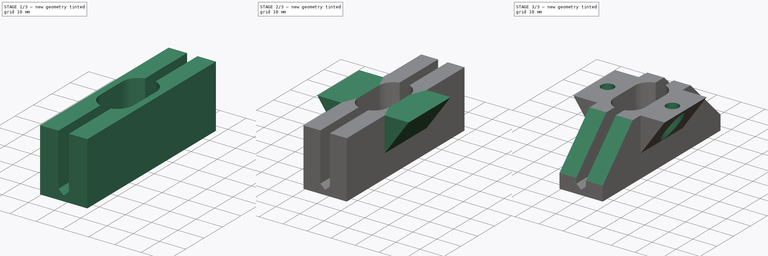
[diagram: build sequence overview — one tinted view per stage of 3, left to right]
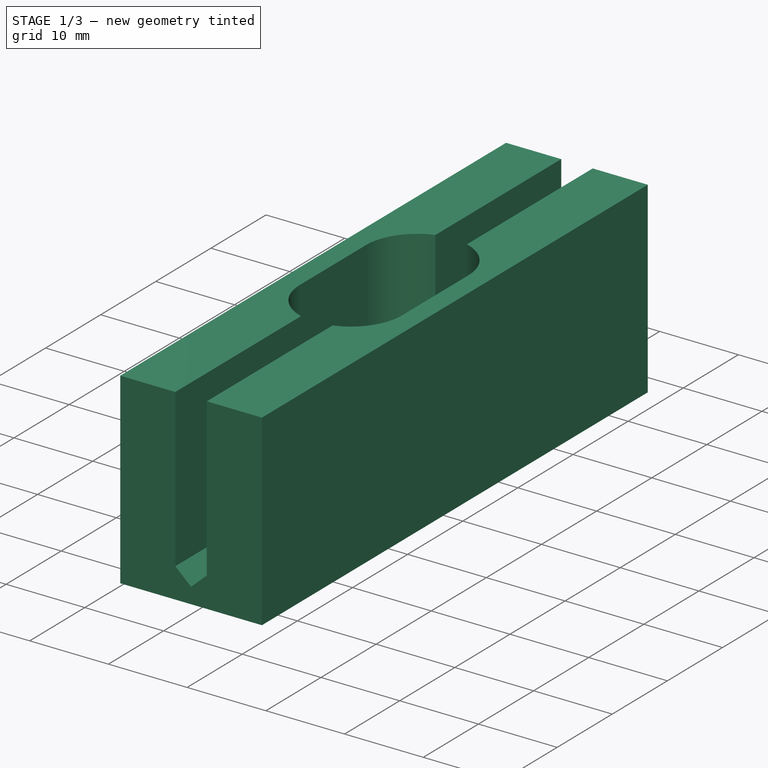
[diagram: stage 1 of 3 — iso view after this stage's code; geometry added in this stage tinted green]
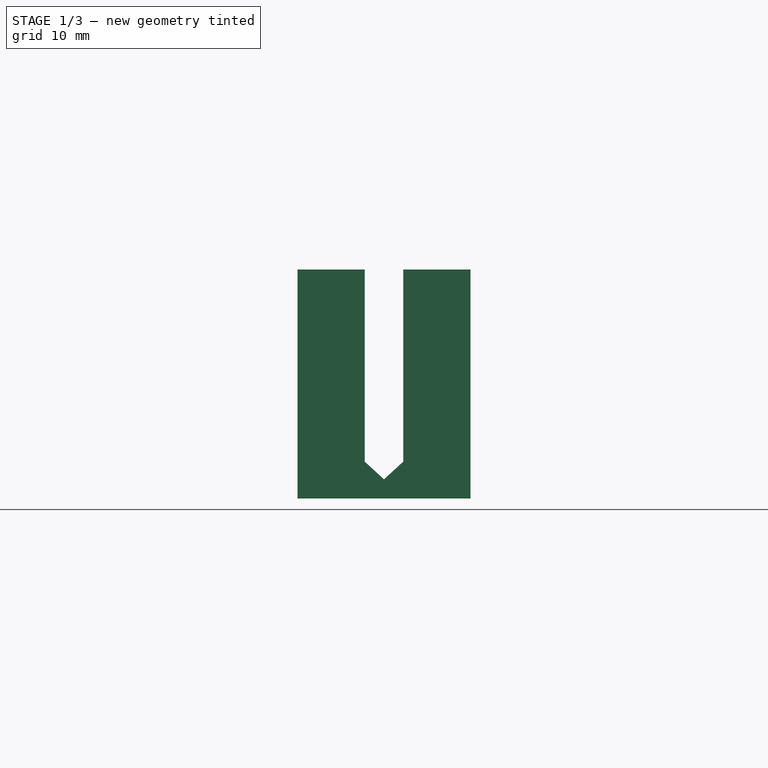
[diagram: stage 1 of 3 — front view after this stage's code; geometry added in this stage tinted green]
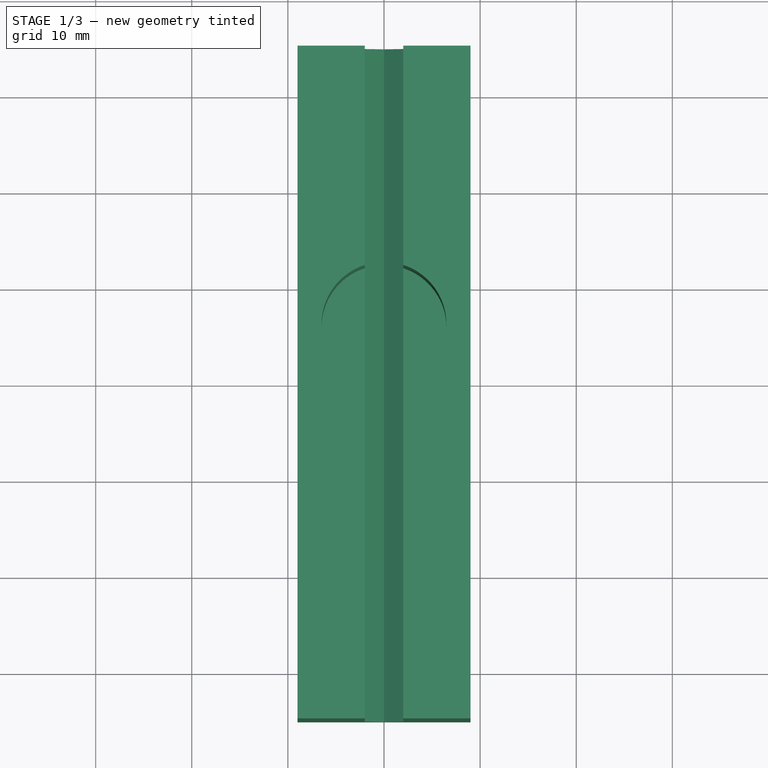
[diagram: stage 1 of 3 — top view after this stage's code; geometry added in this stage tinted green]
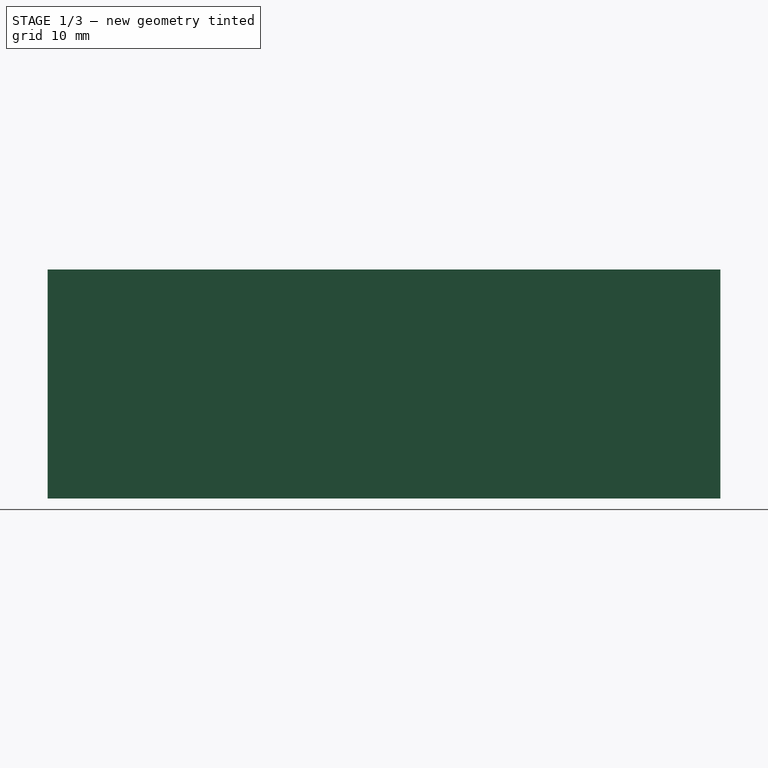
[diagram: stage 1 of 3 — right view after this stage's code; geometry added in this stage tinted green]
FCSTD DOCUMENT  (FreeCAD 1.0R39109 (Git))
Label: Alweco_GreenHouse_Shade_Base
License: All rights reserved
objects: Sketcher::SketchObject×5, PartDesign::Pad×2, PartDesign::Pocket×2, PartDesign::Hole×1, PartDesign::Body×1
note: 26 computed .brp shape members not serialized (recipe doc carries the construction recipe); baked Part::Feature solids carry a one-line shape summary decoded from their .brp

FEATURE [Sketcher::SketchObject] Sketch
  ArcFitTolerance = 1e-06
  AttachmentSupport = -> [XZ_Plane]
  FullyConstrained = true
  MakeInternals = false
  MapMode = 5
  Placement = pos=(0,0,0) rot=(1,0,0;1.5708rad)
  sketch-geometry (9):
    g0: LineSegment StartX=-9 StartY=0 StartZ=0 EndX=9 EndY=0 EndZ=0
    g1: LineSegment StartX=0 StartY=2 StartZ=0 EndX=-2 EndY=3.83266 EndZ=0
    g2: LineSegment StartX=0 StartY=2 StartZ=0 EndX=2 EndY=3.83266 EndZ=0
    g3: LineSegment StartX=2 StartY=3.83266 StartZ=0 EndX=2 EndY=23.8327 EndZ=0
    g4: LineSegment StartX=-2 StartY=3.83266 StartZ=0 EndX=-2 EndY=23.8327 EndZ=0
    g5: LineSegment StartX=-2 StartY=23.8327 StartZ=0 EndX=-9 EndY=23.8327 EndZ=0
    g6: LineSegment StartX=2 StartY=23.8327 StartZ=0 EndX=9 EndY=23.8327 EndZ=0
    g7: LineSegment StartX=9 StartY=23.8327 StartZ=0 EndX=9 EndY=0 EndZ=0
    g8: LineSegment StartX=-9 StartY=23.8327 StartZ=0 EndX=-9 EndY=0 EndZ=0
  constraints (26):
    c: PointOnObject(g0,g-1)
    c: PointOnObject(g0,g-1)
    c: PointOnObject(g1,g-2)
    c: Coincident(g2,g1)
    c: Symmetric(g1,g2,g-2)
    c: DistanceX(g1,g2) = 4
    c: Angle(g2,g1) = 1.65806
    c: Coincident(g3,g2)
    c: Vertical(g3)
    c: Coincident(g4,g1)
    c: Symmetric(g4,g3,g-2)
    c: DistanceY(g3,g3) = 20  'InnerHeight'
    c: DistanceY(g-1,g1) = 2
    c: Coincident(g5,g4)
    c: Horizontal(g5)
    c: Coincident(g6,g3)
    c: Coincident(g7,g6)
    c: Coincident(g7,g0)
    c: Coincident(g8,g5)
    c: Coincident(g8,g0)
    c: Vertical(g8)
    c: Vertical(g7)
    c: Symmetric(g6,g5,g-2)
    c: DistanceX(g6,g6) = 7
    c: DistanceY(g8,g8) = 23.8327  'Height'
    c: DistanceX(g0,g0) = 18  'Width'
FEATURE [PartDesign::Pad] Pad
  Direction = (0,-1,2e-16)
  Length = 70
  Length2 = 10
  Midplane = true
  Placement = pos=(0,0,0) rot=(1,0,0;1.5708rad)
  Profile = -> Sketch
  ReferenceAxis = -> Sketch [N_Axis]
  Refine = true
  Suppressed = false
  Type = 0
FEATURE [Sketcher::SketchObject] Sketch001
  ArcFitTolerance = 1e-06
  AttachmentSupport = -> [Pad]
  FullyConstrained = true
  MakeInternals = false
  MapMode = 5
  Placement = pos=(0,5.3e-15,23.8327) rot=(0,0,1;3.14159rad)
  expr: .Constraints.Height = 25 mm - .Constraints.Width
  sketch-geometry (4):
    g0: ArcOfCircle CenterX=0 CenterY=6 CenterZ=0 NormalX=0 NormalY=0 NormalZ=1 AngleXU=0 Radius=6.5 StartAngle=0 EndAngle=3.14159
    g1: ArcOfCircle CenterX=0 CenterY=-6 CenterZ=0 NormalX=0 NormalY=0 NormalZ=1 AngleXU=0 Radius=6.5 StartAngle=3.14159 EndAngle=6.28319
    g2: LineSegment StartX=6.5 StartY=6 StartZ=0 EndX=6.5 EndY=-6 EndZ=0
    g3: LineSegment StartX=-6.5 StartY=6 StartZ=0 EndX=-6.5 EndY=-6 EndZ=0
  constraints (9):
    c: Tangent(g0,g2) = 1.5708
    c: Tangent(g0,g3) = -1.5708
    c: Tangent(g1,g2) = 1.5708
    c: Tangent(g1,g3) = -1.5708
    c: Equal(g0,g1)
    c: PointOnObject(g0,g-2)
    c: Symmetric(g0,g1,g-1)
    c: Distance(g1,g1) = 13  'Width'
    c: DistanceY(g1,g0) = 12  'Height'
FEATURE [PartDesign::Pocket] Pocket
  BaseFeature = -> Pad
  Direction = (0,0,-1)
  Length = 20
  Length2 = 5
  Placement = pos=(0,0,0) rot=(1,0,0;1.5708rad)
  Profile = -> Sketch001
  ReferenceAxis = -> Sketch001 [N_Axis]
  Refine = true
  Suppressed = false
  Type = 0
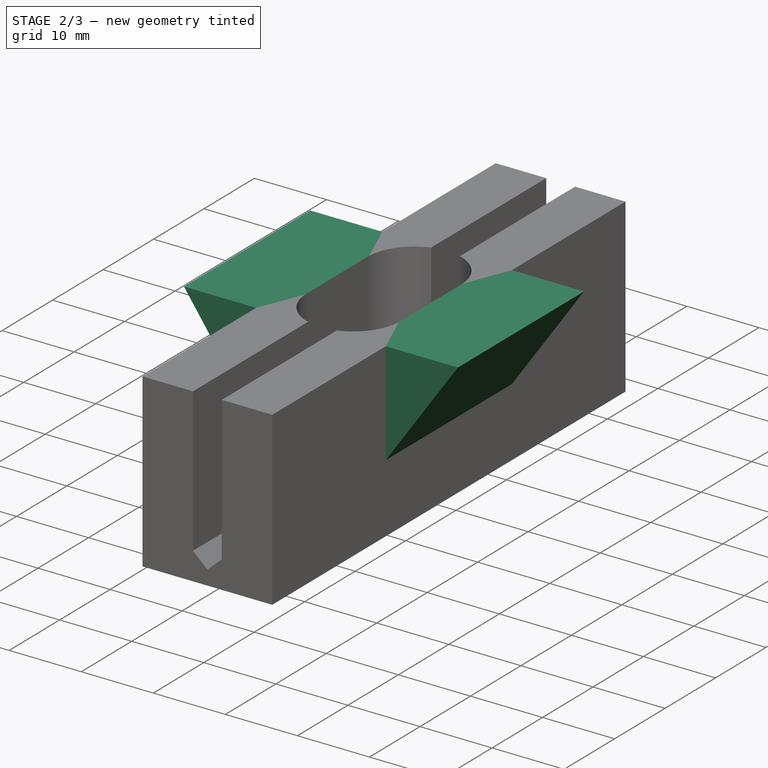
[diagram: stage 2 of 3 — iso view after this stage's code; geometry added in this stage tinted green]
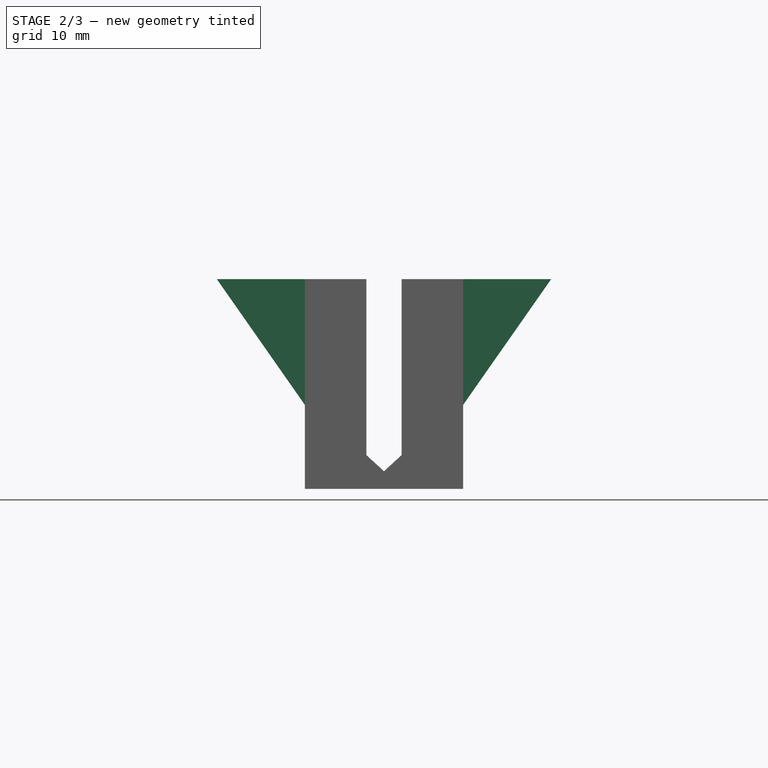
[diagram: stage 2 of 3 — front view after this stage's code; geometry added in this stage tinted green]
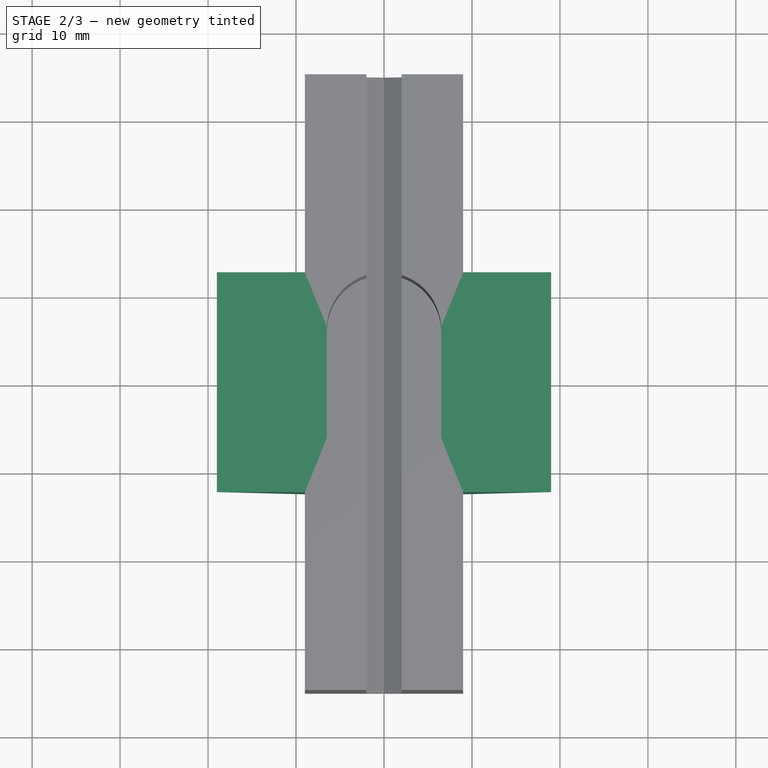
[diagram: stage 2 of 3 — top view after this stage's code; geometry added in this stage tinted green]
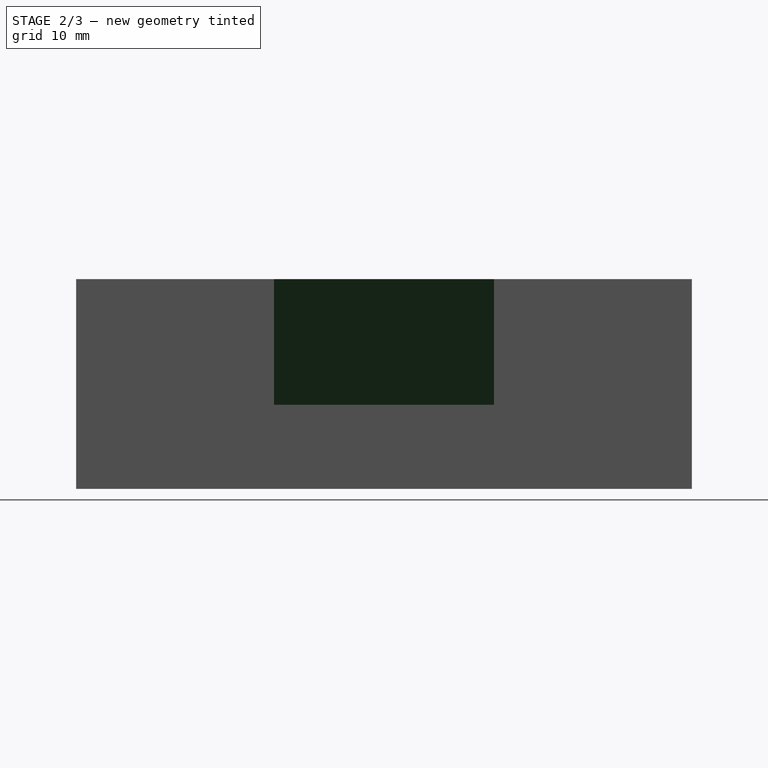
[diagram: stage 2 of 3 — right view after this stage's code; geometry added in this stage tinted green]
FEATURE [Sketcher::SketchObject] Sketch002
  ArcFitTolerance = 1e-06
  AttachmentSupport = -> [XZ_Plane]
  FullyConstrained = true
  MakeInternals = false
  MapMode = 5
  Placement = pos=(0,0,0) rot=(1,0,0;1.5708rad)
  expr: Constraints[15] = <<Sketch>>.Constraints.Width
  expr: Constraints[5] = <<Sketch>>.Constraints.Height
  sketch-geometry (6):
    g0: LineSegment StartX=9 StartY=23.8327 StartZ=0 EndX=19 EndY=23.8327 EndZ=0
    g1: LineSegment StartX=-9 StartY=23.8327 StartZ=0 EndX=-19 EndY=23.8327 EndZ=0
    g2: LineSegment StartX=19 StartY=23.8327 StartZ=0 EndX=9 EndY=9.55118 EndZ=0
    g3: LineSegment StartX=9 StartY=23.8327 StartZ=0 EndX=9 EndY=9.55118 EndZ=0
    g4: LineSegment StartX=-19 StartY=23.8327 StartZ=0 EndX=-9 EndY=9.55118 EndZ=0
    g5: LineSegment StartX=-9 StartY=9.55118 StartZ=0 EndX=-9 EndY=23.8327 EndZ=0
  constraints (17):
    c: Distance(g0) = 10
    c: Horizontal(g0)
    c: Distance(g1) = 10
    c: Horizontal(g1)
    c: Symmetric(g1,g0,g-2)
    c: DistanceY(g-1,g0) = 23.8327
    c: Coincident(g2,g0)
    c: Coincident(g3,g0)
    c: Coincident(g3,g2)
    c: Vertical(g3)
    c: Coincident(g4,g1)
    c: Coincident(g5,g4)
    c: Coincident(g5,g1)
    c: Symmetric(g2,g4,g-2)
    c: Angle(g0,g2) = 0.959931
    c: DistanceX(g1,g0) = 18
    c: DistanceX(g1,g0) = 38  'FullWidth'
FEATURE [PartDesign::Pad] Pad001
  BaseFeature = -> Pocket
  Direction = (0,-1,2e-16)
  Length = 25
  Length2 = 10
  Midplane = true
  Placement = pos=(0,0,0) rot=(1,0,0;1.5708rad)
  Profile = -> Sketch002
  ReferenceAxis = -> Sketch002 [N_Axis]
  Refine = true
  Suppressed = false
  Type = 0
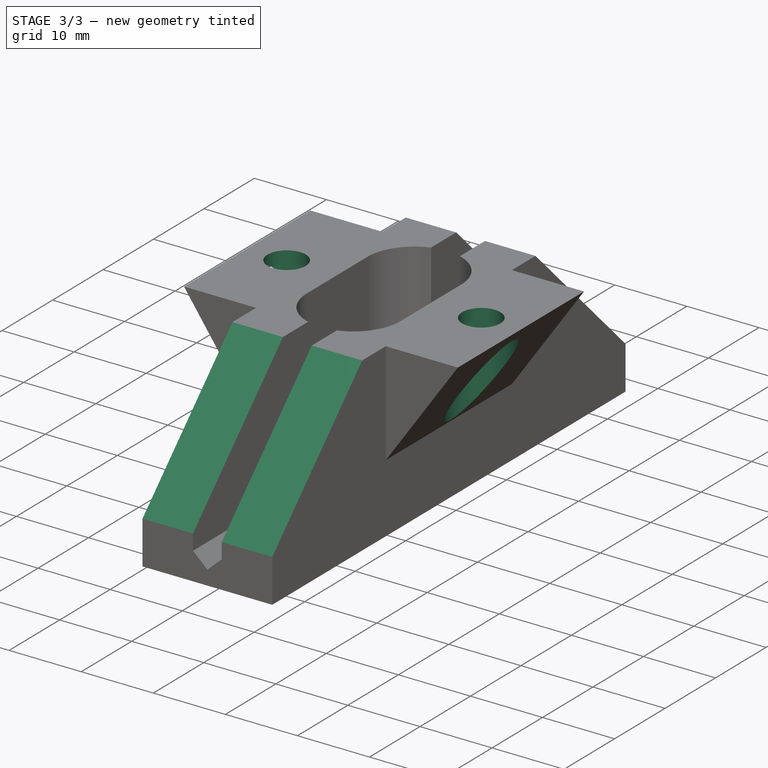
[diagram: stage 3 of 3 — iso view after this stage's code; geometry added in this stage tinted green]
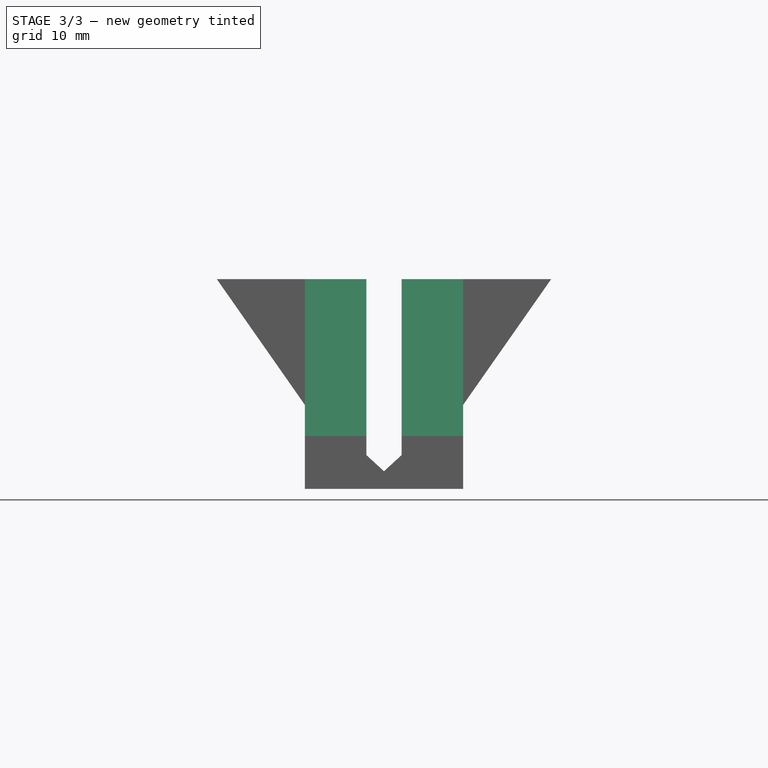
[diagram: stage 3 of 3 — front view after this stage's code; geometry added in this stage tinted green]
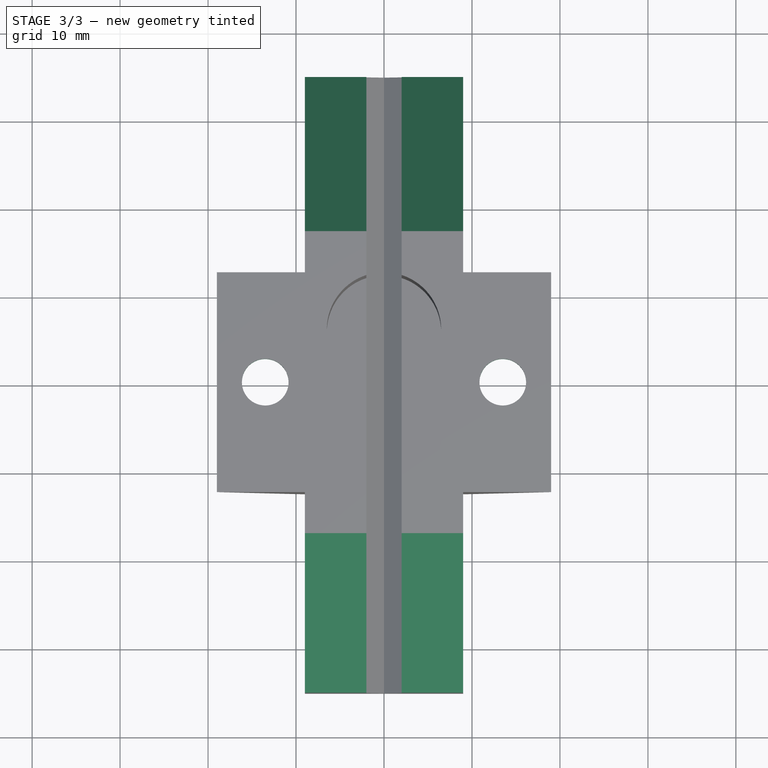
[diagram: stage 3 of 3 — top view after this stage's code; geometry added in this stage tinted green]
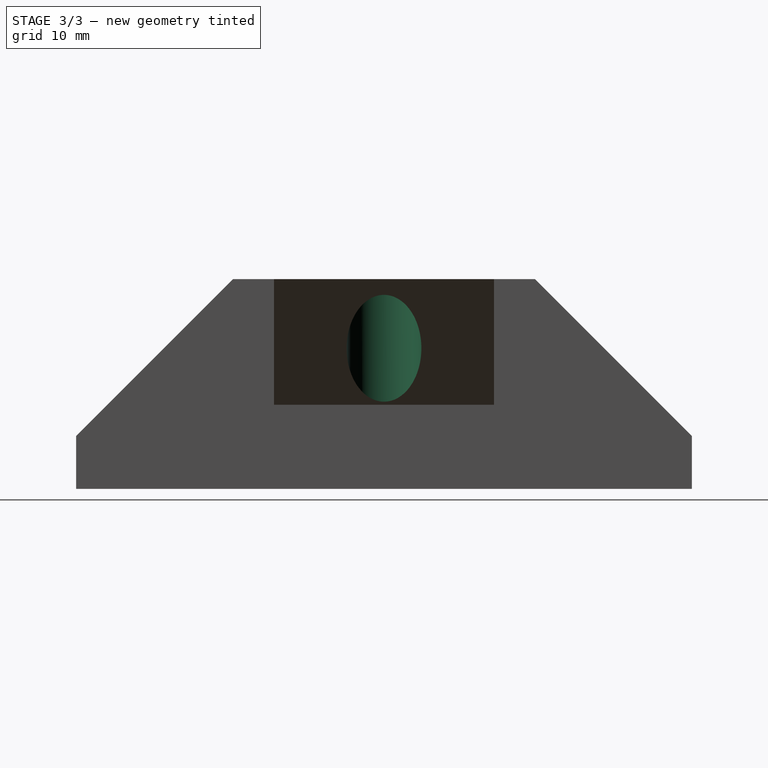
[diagram: stage 3 of 3 — right view after this stage's code; geometry added in this stage tinted green]
FEATURE [Sketcher::SketchObject] Sketch003
  ArcFitTolerance = 1e-06
  AttachmentOffset = pos=(0,0,-14) rot=(0,0,1;0rad)
  AttachmentSupport = -> [Pad001]
  FullyConstrained = true
  MakeInternals = false
  MapMode = 5
  Placement = pos=(0,5.3e-15,9.83266) rot=(0,0,1;3.14159rad)
  sketch-geometry (2):
    g0: Circle CenterX=-13.5 CenterY=0 CenterZ=0 NormalX=0 NormalY=0 NormalZ=1 AngleXU=0 Radius=2.5
    g1: Circle CenterX=13.5 CenterY=0 CenterZ=0 NormalX=0 NormalY=0 NormalZ=1 AngleXU=0 Radius=2.5
  constraints (6):
    c: PointOnObject(g0,g-1)
    c: Equal(g1,g0)
    c: Diameter(g1) = 5
    c: Symmetric(g0,g1,g-2)
    c: DistanceX(g0,g-1) = 13.5
    c: Distance(g0,g1) = 27  'HoleSperation'
FEATURE [PartDesign::Hole] Hole
  BaseFeature = -> Pad001
  CustomThreadClearance = 0
  Depth = 25
  DepthType = 0
  Diameter = 5.3
  DrillForDepth = false
  DrillPoint = 1
  DrillPointAngle = 118
  HoleCutCountersinkAngle = 90
  HoleCutCustomValues = false
  HoleCutDepth = 12.3
  HoleCutDiameter = 8.5
  HoleCutType = 1
  ModelThread = false
  Placement = pos=(0,0,0) rot=(1,0,0;1.5708rad)
  Profile = -> Sketch003
  Refine = true
  Reversed = true
  Suppressed = false
  Tapered = false
  TaperedAngle = 90
  ThreadClass = 0
  ThreadDepth = 25
  ThreadDepthType = 0
  ThreadDirection = 0
  ThreadFit = 1
  ThreadSize = 13
  ThreadType = 2
  Threaded = false
  UseCustomThreadClearance = false
FEATURE [Sketcher::SketchObject] Sketch005
  ArcFitTolerance = 1e-06
  AttachmentSupport = -> [YZ_Plane]
  FullyConstrained = true
  MakeInternals = false
  MapMode = 5
  Placement = pos=(0,0,0) rot=(0.57735,0.57735,0.57735;2.0944rad)
  sketch-geometry (6):
    g0: LineSegment StartX=-36 StartY=25 StartZ=0 EndX=-36 EndY=5 EndZ=0
    g1: LineSegment StartX=-36 StartY=25 StartZ=0 EndX=-16 EndY=25 EndZ=0
    g2: LineSegment StartX=-16 StartY=25 StartZ=0 EndX=-36 EndY=5 EndZ=0
    g3: LineSegment StartX=16 StartY=25 StartZ=0 EndX=36 EndY=25 EndZ=0
    g4: LineSegment StartX=36 StartY=25 StartZ=0 EndX=36 EndY=5 EndZ=0
    g5: LineSegment StartX=36 StartY=5 StartZ=0 EndX=16 EndY=25 EndZ=0
  constraints (17):
    c: Vertical(g0)
    c: Coincident(g1,g0)
    c: Horizontal(g1)
    c: Coincident(g2,g1)
    c: Coincident(g2,g0)
    c: Equal(g1,g0)
    c: DistanceX(g1,g1) = 20
    c: Horizontal(g3)
    c: Coincident(g4,g3)
    c: Vertical(g4)
    c: Coincident(g5,g4)
    c: Coincident(g5,g3)
    c: Equal(g1,g3)
    c: Equal(g3,g4)
    c: Symmetric(g0,g3,g-2)
    c: DistanceX(g0,g-1) = 36
    c: DistanceY(g-1,g0) = 25
FEATURE [PartDesign::Pocket] Pocket001
  BaseFeature = -> Hole
  Direction = (-1,0,0)
  Length = 22
  Length2 = 5
  Midplane = true
  Placement = pos=(0,0,0) rot=(1,0,0;1.5708rad)
  Profile = -> Sketch005
  ReferenceAxis = -> Sketch005 [N_Axis]
  Refine = true
  Suppressed = false
  Type = 0
FEATURE [PartDesign::Body] Body  label="Alweco_GreenHouse_Shade_Base"
  AllowCompound = false
  Group = -> [Sketch,Pad,Sketch001,Pocket,Sketch002,Pad001,Sketch003,Hole,Sketch005,Pocket001]
  Origin = -> Origin
  Tip = -> Pocket001
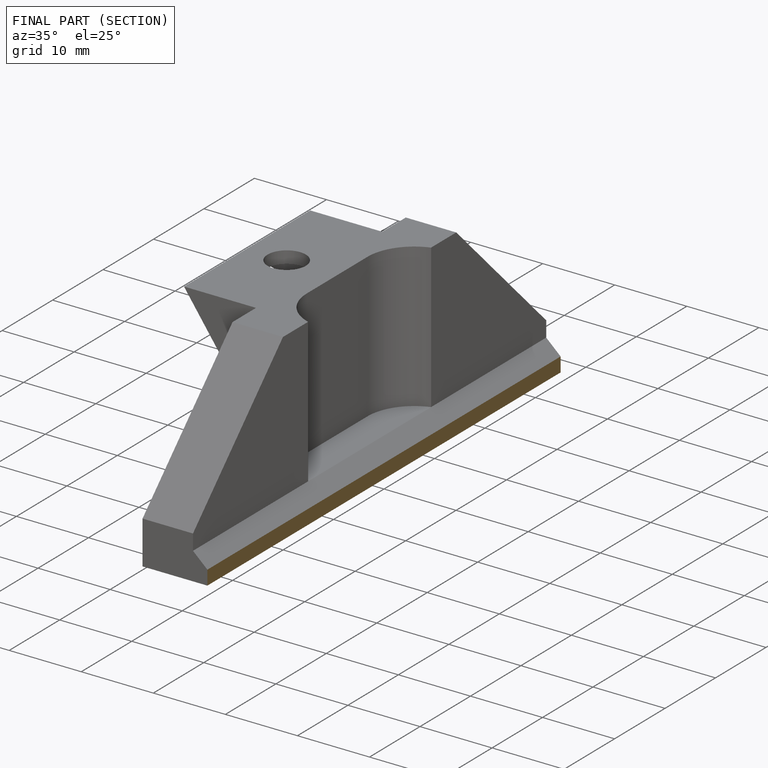
[diagram: finished part — half-section view (interior)]
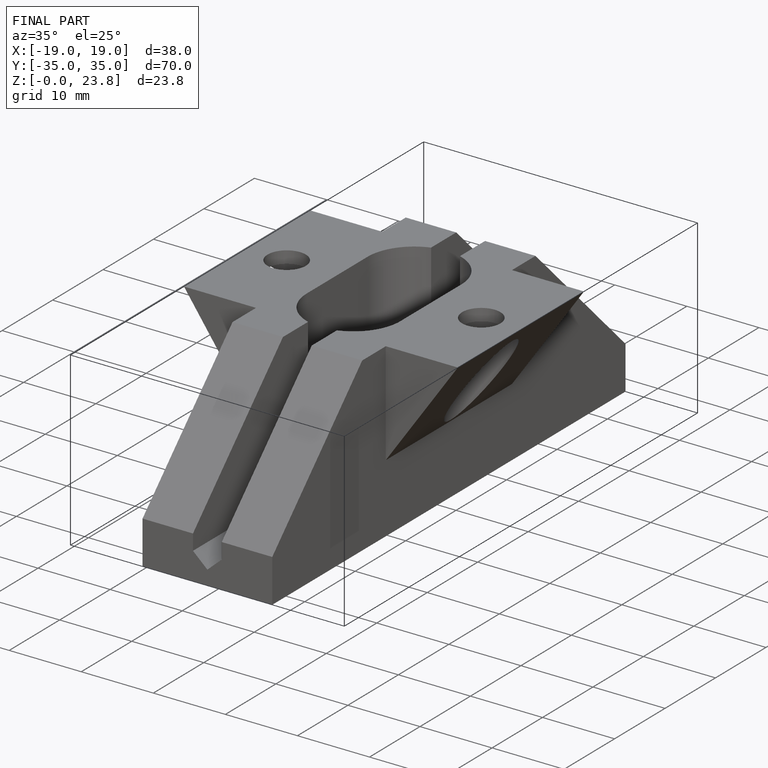
[diagram: finished part — iso view with bounding-box wireframe]
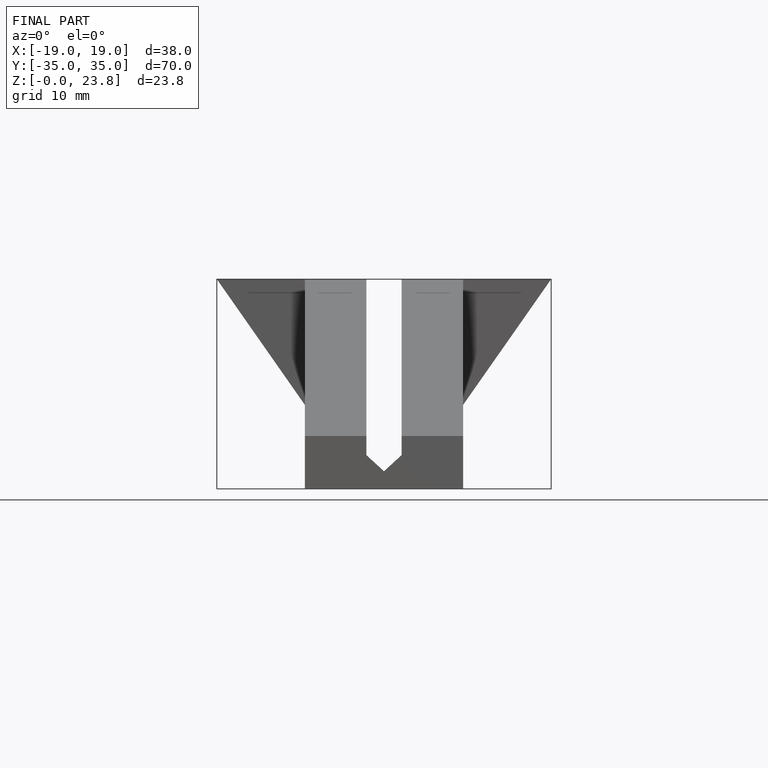
[diagram: finished part — front view with bounding-box wireframe]
